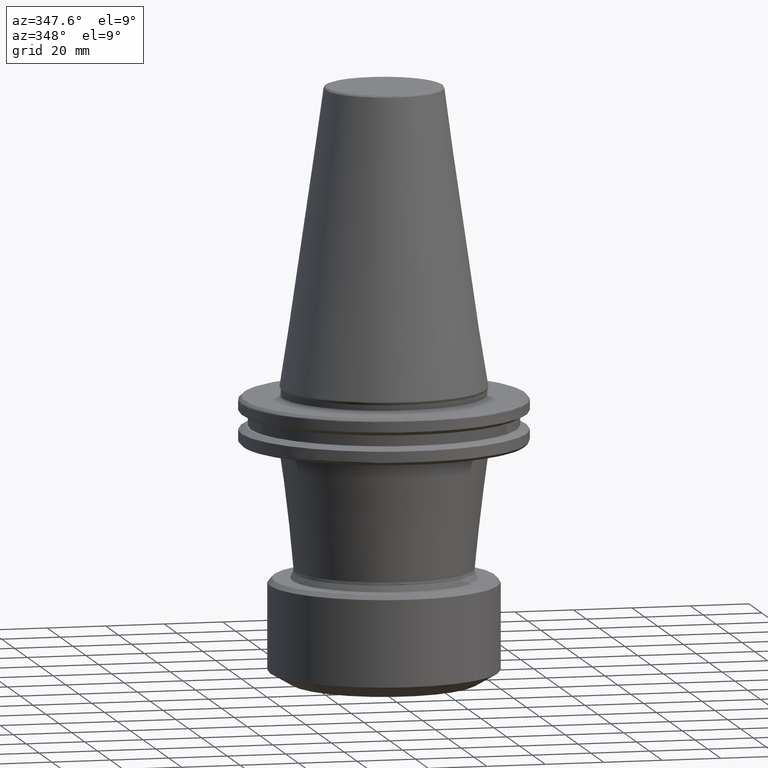
[diagram: clean part render]
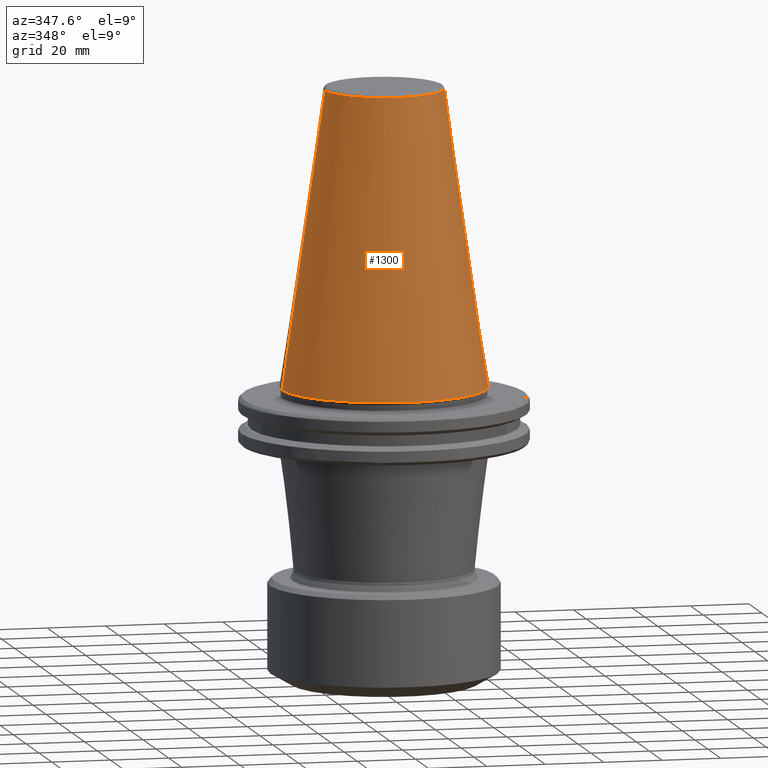
[diagram: same view with one face highlighted and labeled with its STEP entity id]
A machine part, auxiliary view. The second image highlights one B-rep face of the part: STEP entity #1300.
In plain terms, the highlighted conical surface has half-angle 8.297 deg.
Its self-contained STEP definition (entity closure, byte-faithful):
#4 = LINE ( 'NONE', #1993, #2856 ) ;
#32 = CIRCLE ( 'NONE', #1926, 20.21110778703756600 ) ;
#191 = EDGE_CURVE ( 'NONE', #1931, #2644, #32, .T. ) ;
#640 = DIRECTION ( 'NONE',  ( -1.000000000000000000, 0.0000000000000000000, 0.0000000000000000000 ) ) ;
#644 = DIRECTION ( 'NONE',  ( -0.0000000000000000000, -0.0000000000000000000, 1.000000000000000000 ) ) ;
#956 = EDGE_CURVE ( 'NONE', #1931, #2005, #2765, .T. ) ;
#1090 = CARTESIAN_POINT ( 'NONE',  ( 20.21110778703756900, 3.376112895941950600E-015, 100.8943082272673000 ) ) ;
#1175 = ORIENTED_EDGE ( 'NONE', *, *, #191, .T. ) ;
#1207 = AXIS2_PLACEMENT_3D ( 'NONE', #1799, #1549, #1292 ) ;
#1292 = DIRECTION ( 'NONE',  ( -1.000000000000000000, 0.0000000000000000000, 0.0000000000000000000 ) ) ;
#1300 = ADVANCED_FACE ( 'NONE', ( #1498 ), #1368, .T. ) ;
#1368 = CONICAL_SURFACE ( 'NONE', #1207, 34.92499999999999700, 0.1448138465474190200 ) ;
#1423 = ORIENTED_EDGE ( 'NONE', *, *, #2401, .T. ) ;
#1465 = VERTEX_POINT ( 'NONE', #2947 ) ;
#1498 = FACE_OUTER_BOUND ( 'NONE', #2309, .T. ) ;
#1549 = DIRECTION ( 'NONE',  ( 0.0000000000000000000, 0.0000000000000000000, -1.000000000000000000 ) ) ;
#1687 = VECTOR ( 'NONE', #2434, 1000.000000000000000 ) ;
#1798 = CIRCLE ( 'NONE', #2125, 34.92499999999999700 ) ;
#1799 = CARTESIAN_POINT ( 'NONE',  ( 0.0000000000000000000, 0.0000000000000000000, -1.387778780781445700E-014 ) ) ;
#1820 = ORIENTED_EDGE ( 'NONE', *, *, #956, .F. ) ;
#1839 = DIRECTION ( 'NONE',  ( -1.000000000000000000, 0.0000000000000000000, 0.0000000000000000000 ) ) ;
#1843 = DIRECTION ( 'NONE',  ( 0.0000000000000000000, 0.0000000000000000000, -1.000000000000000000 ) ) ;
#1846 = CARTESIAN_POINT ( 'NONE',  ( 0.0000000000000000000, 0.0000000000000000000, 100.8943082272673000 ) ) ;
#1889 = CARTESIAN_POINT ( 'NONE',  ( 34.92500000000000400, 0.0000000000000000000, 0.0000000000000000000 ) ) ;
#1926 = AXIS2_PLACEMENT_3D ( 'NONE', #1846, #1843, #1839 ) ;
#1931 = VERTEX_POINT ( 'NONE', #1090 ) ;
#1993 = CARTESIAN_POINT ( 'NONE',  ( -34.92499999999999700, 0.0000000000000000000, -1.387778780781445700E-014 ) ) ;
#2005 = VERTEX_POINT ( 'NONE', #1889 ) ;
#2125 = AXIS2_PLACEMENT_3D ( 'NONE', #2967, #644, #640 ) ;
#2225 = CARTESIAN_POINT ( 'NONE',  ( 34.92499999999999700, 4.277078946022130900E-015, -1.387778780781445700E-014 ) ) ;
#2309 = EDGE_LOOP ( 'NONE', ( #1820, #1175, #3008, #1423 ) ) ;
#2401 = EDGE_CURVE ( 'NONE', #1465, #2005, #1798, .T. ) ;
#2403 = DIRECTION ( 'NONE',  ( -0.1443082272673070200, 0.0000000000000000000, -0.9895327864921743500 ) ) ;
#2434 = DIRECTION ( 'NONE',  ( 0.1443082272673070200, 1.767266086135363300E-017, -0.9895327864921743500 ) ) ;
#2545 = EDGE_CURVE ( 'NONE', #2644, #1465, #4, .T. ) ;
#2644 = VERTEX_POINT ( 'NONE', #2935 ) ;
#2765 = LINE ( 'NONE', #2225, #1687 ) ;
#2856 = VECTOR ( 'NONE', #2403, 1000.000000000000000 ) ;
#2935 = CARTESIAN_POINT ( 'NONE',  ( -20.21110778703756600, 0.0000000000000000000, 100.8943082272673000 ) ) ;
#2947 = CARTESIAN_POINT ( 'NONE',  ( -34.92500000000000400, 4.277078946022131700E-015, 0.0000000000000000000 ) ) ;
#2967 = CARTESIAN_POINT ( 'NONE',  ( 0.0000000000000000000, 0.0000000000000000000, 0.0000000000000000000 ) ) ;
#3008 = ORIENTED_EDGE ( 'NONE', *, *, #2545, .T. ) ;